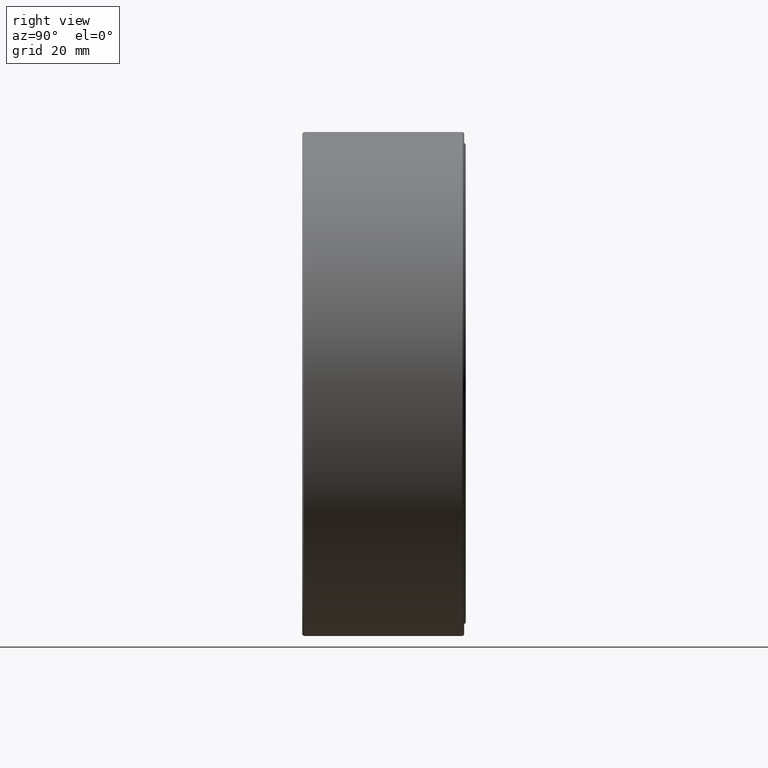
[diagram: clean part render]
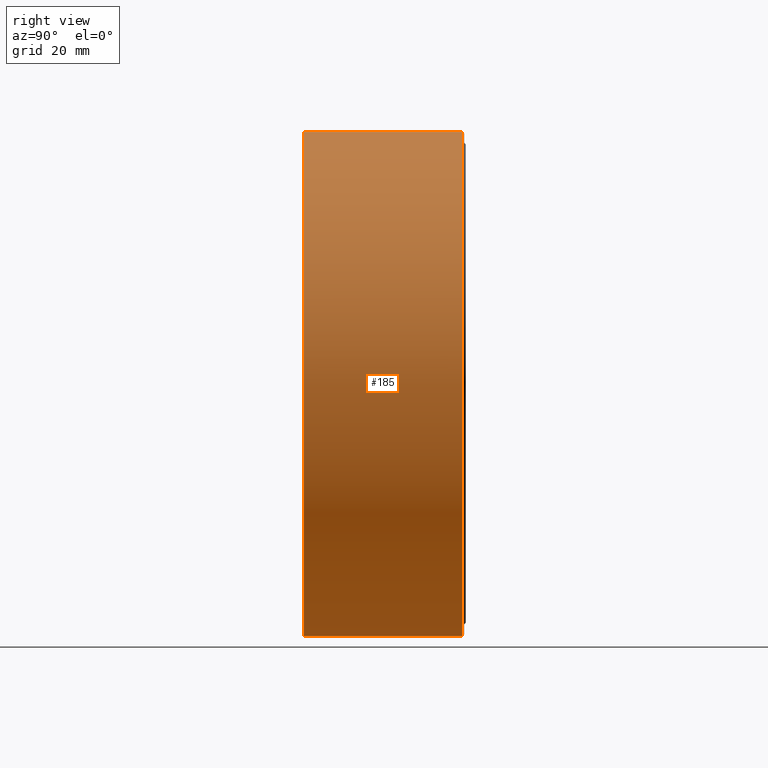
[diagram: same view with one face highlighted and labeled with its STEP entity id]
A machine part, right view. The second image highlights one B-rep face of the part: STEP entity #185.
In plain terms, the highlighted cylindrical surface (bore or boss wall) has radius 58.7375 mm, axis along (-0, 1, -0).
Its self-contained STEP definition (entity closure, byte-faithful):
#20 = EDGE_LOOP ( 'NONE', ( #390 ) ) ;
#44 = DIRECTION ( 'NONE',  ( 0.0000000000000000000, 0.0000000000000000000, 1.000000000000000000 ) ) ;
#46 = DIRECTION ( 'NONE',  ( -0.0000000000000000000, 1.000000000000000000, -0.0000000000000000000 ) ) ;
#127 = CARTESIAN_POINT ( 'NONE',  ( 0.0000000000000000000, 1.464999999999999900, 2.312500000000000000 ) ) ;
#161 = DIRECTION ( 'NONE',  ( -0.0000000000000000000, 1.000000000000000000, -0.0000000000000000000 ) ) ;
#185 = ADVANCED_FACE ( 'NONE', ( #419, #203 ), #352, .T. ) ;
#202 = CIRCLE ( 'NONE', #517, 2.312500000000000000 ) ;
#203 = FACE_OUTER_BOUND ( 'NONE', #478, .T. ) ;
#215 = DIRECTION ( 'NONE',  ( 0.0000000000000000000, 0.0000000000000000000, 1.000000000000000000 ) ) ;
#237 = CIRCLE ( 'NONE', #604, 2.312500000000000000 ) ;
#240 = VERTEX_POINT ( 'NONE', #127 ) ;
#247 = CARTESIAN_POINT ( 'NONE',  ( 0.0000000000000000000, 0.0000000000000000000, 0.0000000000000000000 ) ) ;
#275 = CARTESIAN_POINT ( 'NONE',  ( 0.0000000000000000000, 0.01499999999999997700, 0.0000000000000000000 ) ) ;
#310 = CARTESIAN_POINT ( 'NONE',  ( 0.0000000000000000000, 1.464999999999999900, 0.0000000000000000000 ) ) ;
#352 = CYLINDRICAL_SURFACE ( 'NONE', #472, 2.312500000000000000 ) ;
#383 = DIRECTION ( 'NONE',  ( 0.0000000000000000000, 0.0000000000000000000, 1.000000000000000000 ) ) ;
#390 = ORIENTED_EDGE ( 'NONE', *, *, #556, .F. ) ;
#394 = EDGE_CURVE ( 'NONE', #412, #412, #237, .T. ) ;
#412 = VERTEX_POINT ( 'NONE', #443 ) ;
#419 = FACE_OUTER_BOUND ( 'NONE', #20, .T. ) ;
#443 = CARTESIAN_POINT ( 'NONE',  ( 0.0000000000000000000, 0.01499999999999997700, 2.312500000000000000 ) ) ;
#472 = AXIS2_PLACEMENT_3D ( 'NONE', #247, #161, #383 ) ;
#478 = EDGE_LOOP ( 'NONE', ( #564 ) ) ;
#517 = AXIS2_PLACEMENT_3D ( 'NONE', #310, #535, #215 ) ;
#535 = DIRECTION ( 'NONE',  ( -0.0000000000000000000, 1.000000000000000000, -0.0000000000000000000 ) ) ;
#556 = EDGE_CURVE ( 'NONE', #240, #240, #202, .T. ) ;
#564 = ORIENTED_EDGE ( 'NONE', *, *, #394, .T. ) ;
#604 = AXIS2_PLACEMENT_3D ( 'NONE', #275, #46, #44 ) ;